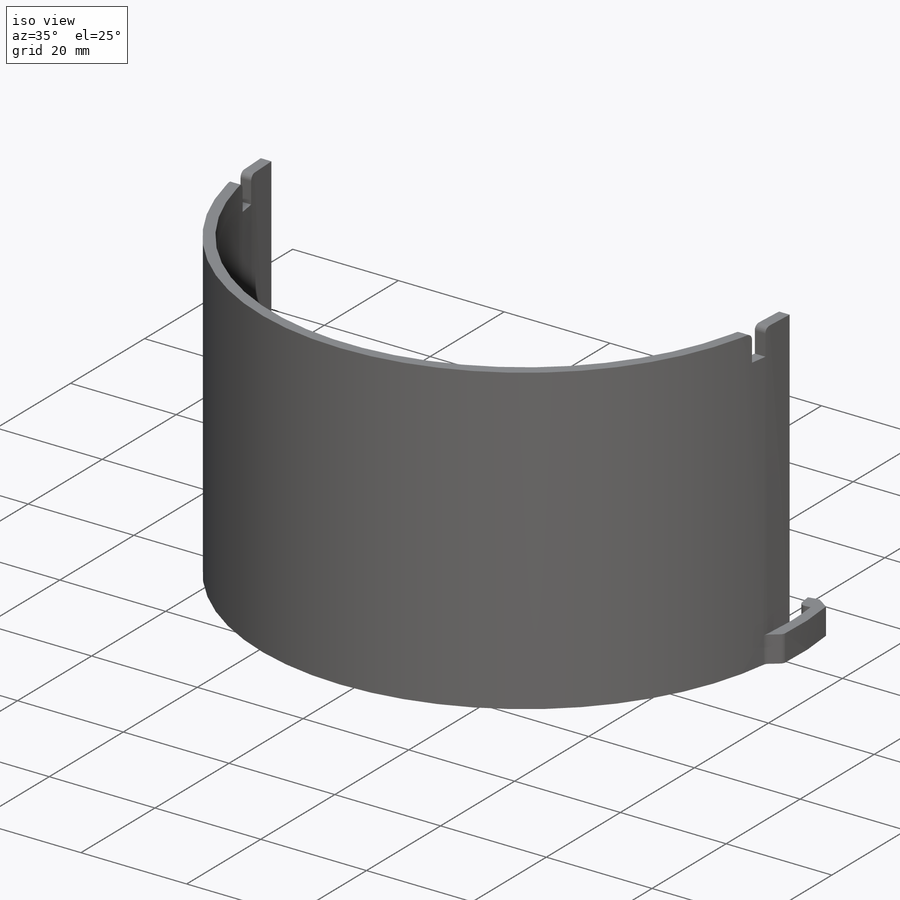
[diagram: iso view]
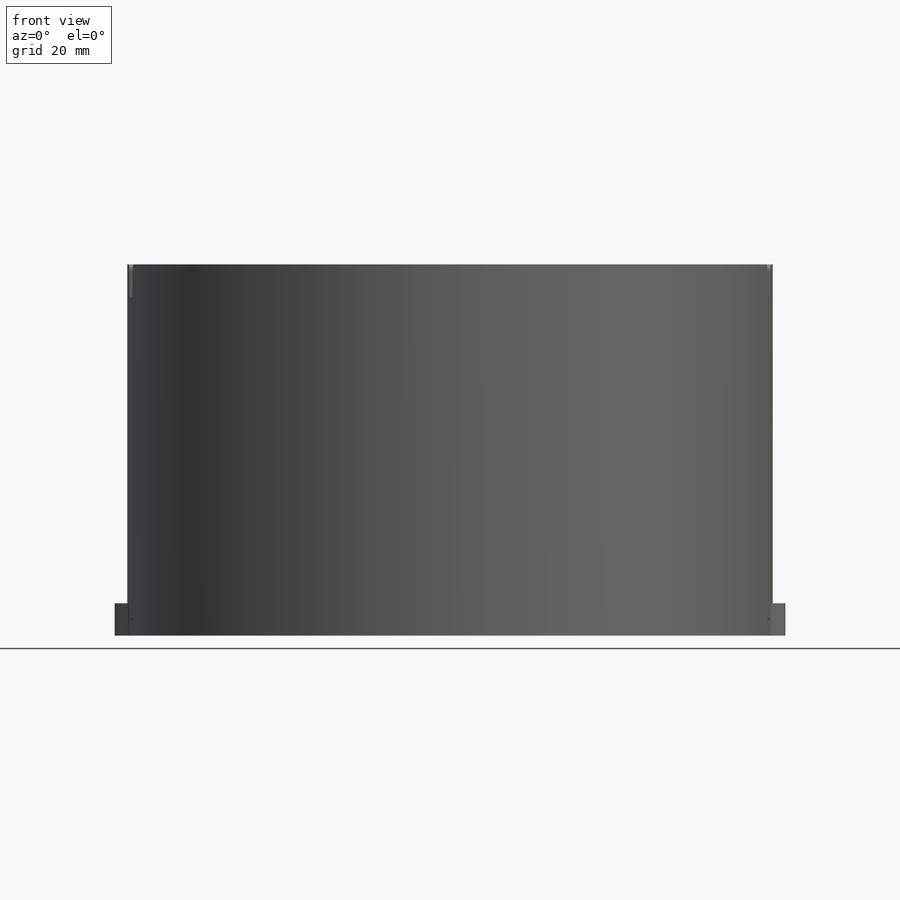
[diagram: front view]
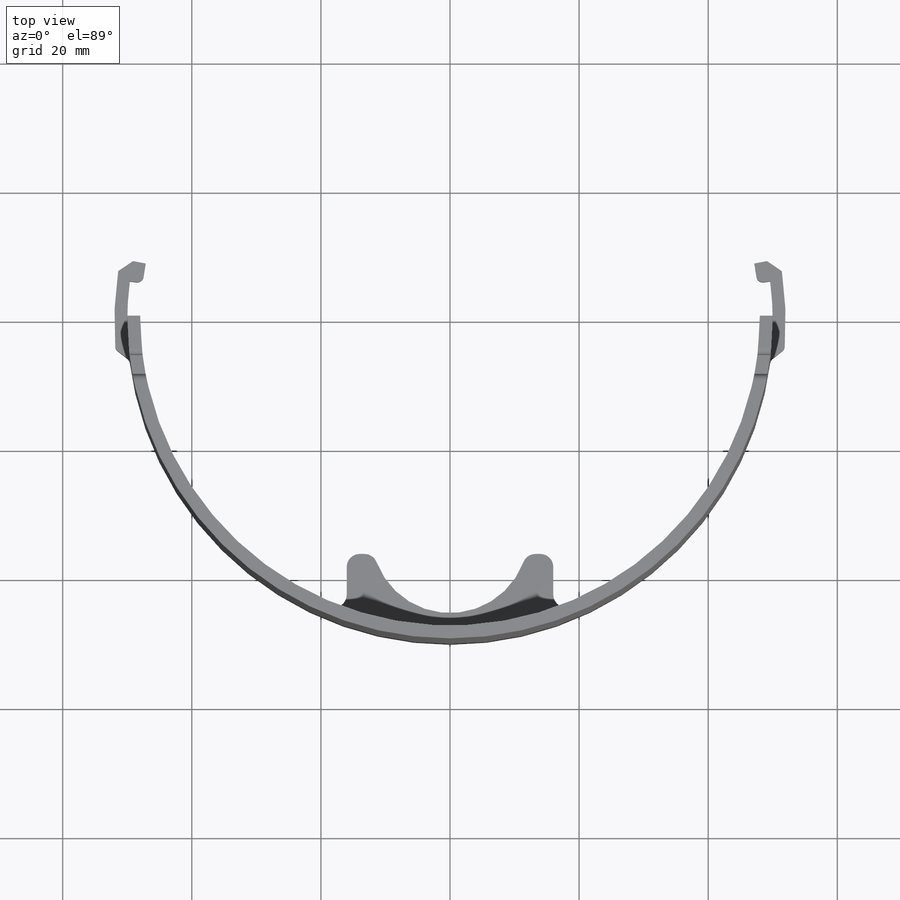
[diagram: top view]
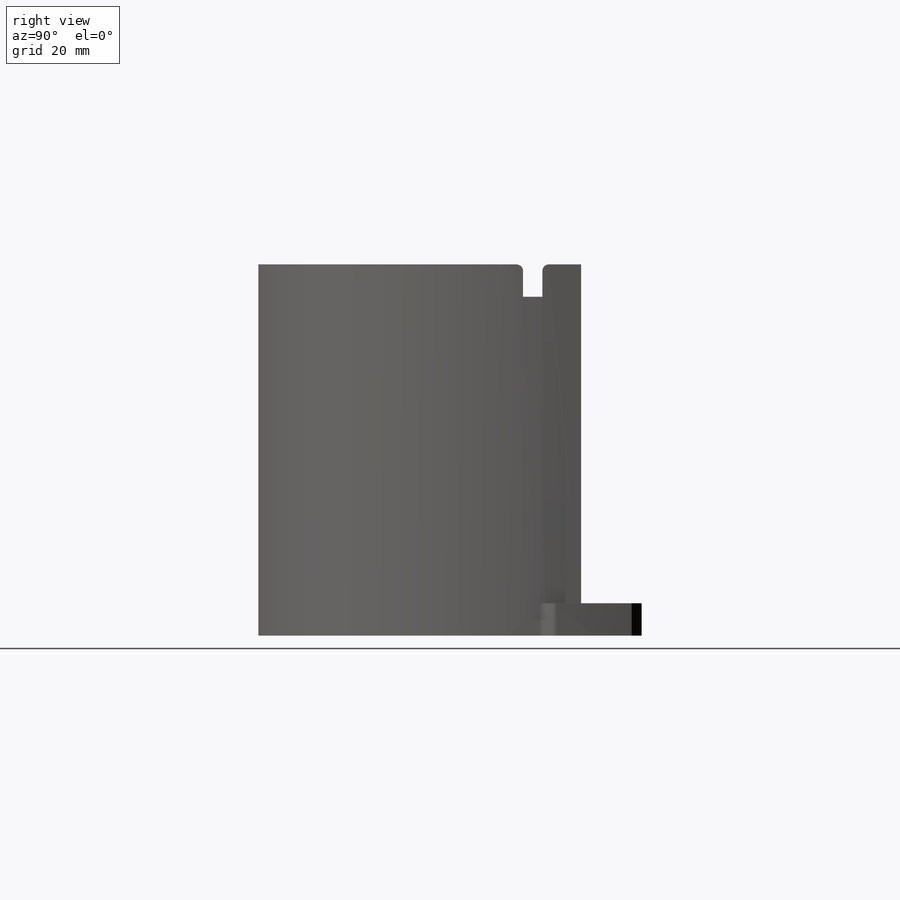
[diagram: right view]
SOLIDWORKS PART (.sldprt)
format: sldprt  version: not decoded by parser v0  size: 345,088 bytes
history: native  units: mm
features: sketch x4, extrude x3, fillet x2, material x1, cut_extrude x1, chamfer x1 + 1 further entry (+18 scaffold rows collapsed; 3 parser-record rows omitted)
feature tree (34):
  scaffold x18  (default folders/planes/origin — collapsed)
  material  "ABS"
  "a_base_t"
  parser-record x3  (decoder bookkeeping rows leaked as tree rows — omitted from the tree; the rows remain in map.json)
  sketch  "Sketch1"  dims[D1=100.0mm D2=2.0mm D3=~22.238642mm]
  extrude  "Shell Body"  Depth=57.5mm
  sketch  "Sketch3"  dims[c1.D1=~1.996716mm c1.D2=~1.844747mm c2.D1=~5.458304mm c2.D2=~3.031738mm c3.D1=3.0mm c3.D2=6.0mm]
  cut_extrude  "Clip Cavity"  Depth=5mm
  sketch  "Sketch4"  dims[c1.D1=48.0mm c1.D4=46.0mm c1.D5=~49.48035mm c2.D1=2.0mm c2.D2=3.0mm c2.D3=6.0mm c2.D4=3.0mm c2.D5=1.5mm c2.D6=1.5mm c2.D7=1.25mm c3.D1=2.0mm c3.D4=~3.001467mm c3.D2=6.0mm c3.D3=6.0mm c4.D4=3.0mm]
  extrude  "Clip"  Depth=5mm
  sketch  "Sketch5"  dims[c1.D1=48.0mm c1.D2=48.0mm c1.D3=0.75mm c1.D6=~12.382661mm c2.D3=12.15mm c2.D1=32.0mm c2.D2=12.0mm c2.D4=4.0mm c2.D5=4.0mm c3.D4=4.0mm c3.D6=3.0mm]
  extrude  "Top Clamp"  Depth=5mm
  chamfer  "Clip Chamfer"  Distance=2mm Angle=45deg
  fillet  "Contouring"  Radius=1mm
  fillet  "Interface Contouring"  Radius=2mm
decode coverage: 11 of 11 modeling features carry decoded parameters; 1 rows unclassified (native names shown)
note: ~ marks probable driven/reference dimensions
note: suppression state not decoded; provenance and decode notes live in map.json
